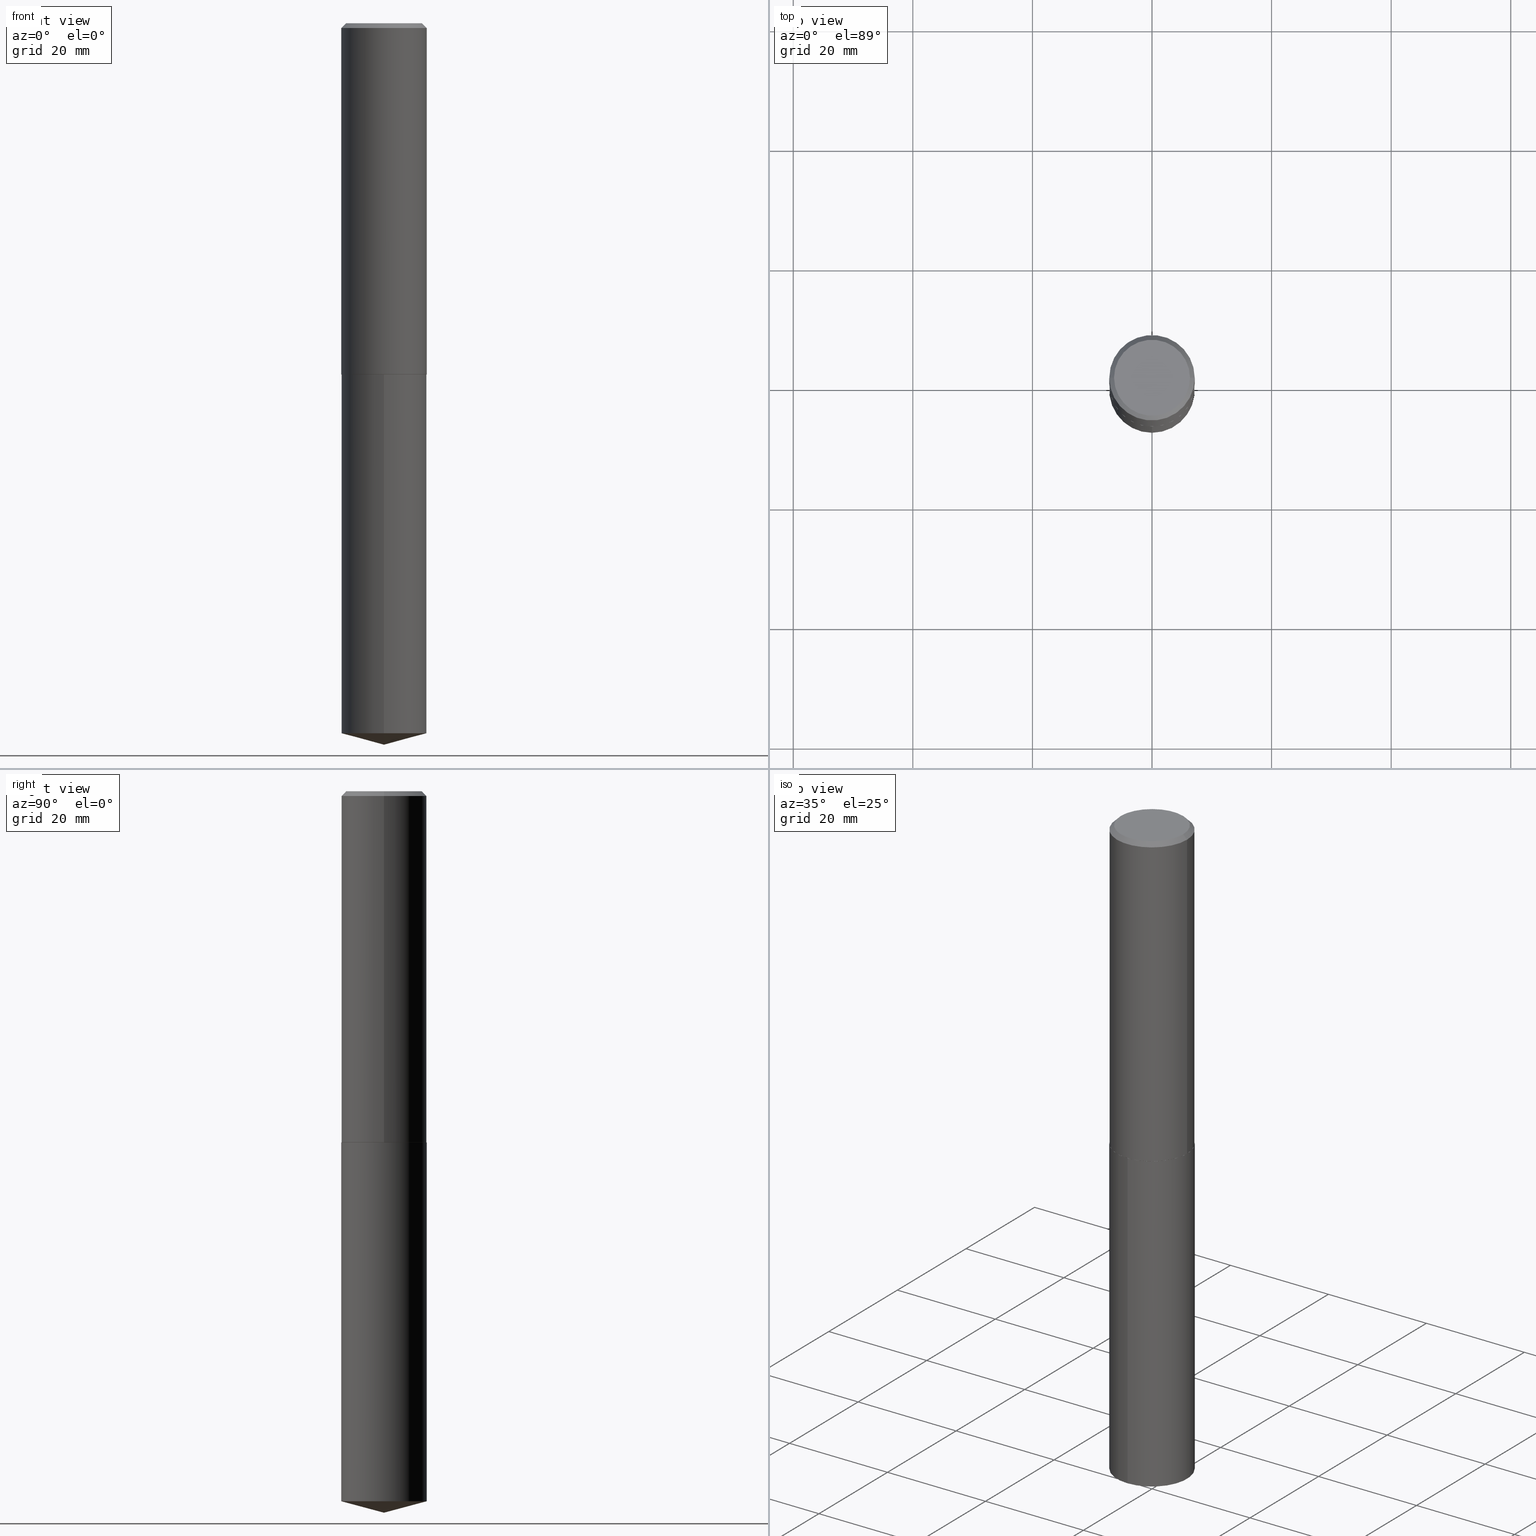
[diagram: canonical four-view strip — front | top / right | iso, engineering-drawing reading convention]
A machine part, canonical four-view strip (front | top / right | iso — engineering-drawing reading convention). The complete STEP part file that produces these views, byte-faithful:
ISO-10303-21;
HEADER;
FILE_DESCRIPTION (( 'STEP AP203' ),
    '1' );
FILE_NAME ('58100.STEP',
    '2024-04-23T02:00:04',
    ( '' ),
    ( '' ),
    'SwSTEP 2.0',
    'SolidWorks 2023',
    '' );
FILE_SCHEMA (( 'CONFIG_CONTROL_DESIGN' ));
ENDSEC;

DATA;
#1 = CALENDAR_DATE ( 2024, 22, 4 ) ;
#2 = FACE_OUTER_BOUND ( 'NONE', #351, .T. ) ;
#3 = DIRECTION ( 'NONE',  ( 1.000000000000000000, 0.000000000000000000, 0.000000000000000000 ) ) ;
#4 = DIRECTION ( 'NONE',  ( -1.000000000000000000, 6.982962677686265922E-15, -4.876176775795935793E-29 ) ) ;
#5 = CONICAL_SURFACE ( 'NONE', #126, 0.2812500000000000000, 0.7853981633974447263 ) ;
#6 = CARTESIAN_POINT ( 'NONE',  ( -0.2812500000000001665, 1.998401444325282956E-15, -1.383450494134192829E-29 ) ) ;
#7 = DATE_TIME_ROLE ( 'creation_date' ) ;
#8 = FACE_OUTER_BOUND ( 'NONE', #82, .T. ) ;
#9 = DIRECTION ( 'NONE',  ( -2.445468806185136597E-29, 3.491481338843145583E-15, 1.000000000000000000 ) ) ;
#10 = APPROVAL_PERSON_ORGANIZATION ( #117, #56, #30 ) ;
#11 = CONICAL_SURFACE ( 'NONE', #228, 0.2812500000000002776, 0.7853981633972775267 ) ;
#12 = DIRECTION ( 'NONE',  ( 1.000000000000000000, -6.982962677686266711E-15, 0.000000000000000000 ) ) ;
#13 = PRODUCT_RELATED_PRODUCT_CATEGORY ( 'detail', '', ( #377 ) ) ;
#14 = DIRECTION ( 'NONE',  ( 1.000000000000000000, -6.982962677686266711E-15, 0.000000000000000000 ) ) ;
#15 = CARTESIAN_POINT ( 'NONE',  ( 1.161598610581294437E-28, -1.658452307512412034E-14, -4.750000000000000000 ) ) ;
#16 = DIRECTION ( 'NONE',  ( 6.863315791527696626E-15, 0.9659258262890698665, 0.2588190451025147998 ) ) ;
#17 = EDGE_CURVE ( 'NONE', #211, #205, #274, .T. ) ;
#18 = ORIENTED_EDGE ( 'NONE', *, *, #103, .T. ) ;
#19 = CARTESIAN_POINT ( 'NONE',  ( -0.2500000000000000000, 1.800295065340990045E-15, 2.871796743988143476E-18 ) ) ;
#20 = VERTEX_POINT ( 'NONE', #237 ) ;
#21 = VERTEX_POINT ( 'NONE', #29 ) ;
#22 = CARTESIAN_POINT ( 'NONE',  ( -1.963958253099205714E-15, -0.2812500000000080491, -2.312499999999999112 ) ) ;
#23 = ORIENTED_EDGE ( 'NONE', *, *, #17, .F. ) ;
#24 = EDGE_CURVE ( 'NONE', #86, #211, #38, .T. ) ;
#25 = ORIENTED_EDGE ( 'NONE', *, *, #24, .T. ) ;
#26 = CC_DESIGN_APPROVAL ( #353, ( #191 ) ) ;
#27 = PERSON_AND_ORGANIZATION ( #303, #365 ) ;
#28 = VECTOR ( 'NONE', #229, 39.37007874015748143 ) ;
#29 = CARTESIAN_POINT ( 'NONE',  ( -1.963958253099147733E-15, -0.2812500000000163203, -4.674639289628746752 ) ) ;
#30 = APPROVAL_ROLE ( '' ) ;
#31 = ORIENTED_EDGE ( 'NONE', *, *, #386, .F. ) ;
#32 = MANIFOLD_SOLID_BREP ( 'Body-Move/Copy2[2]', #203 ) ;
#33 = SHAPE_DEFINITION_REPRESENTATION ( #342, #43 ) ;
#34 = LINE ( 'NONE', #207, #373 ) ;
#35 = PERSON_AND_ORGANIZATION ( #303, #365 ) ;
#36 = ORIENTED_EDGE ( 'NONE', *, *, #89, .T. ) ;
#37 = CC_DESIGN_PERSON_AND_ORGANIZATION_ASSIGNMENT ( #359, #93, ( #191 ) ) ;
#38 = LINE ( 'NONE', #95, #367 ) ;
#39 = DIRECTION ( 'NONE',  ( -2.445543017653500849E-29, 3.491375063796593524E-15, 1.000000000000000000 ) ) ;
#40 = DIRECTION ( 'NONE',  ( -2.445468806185136877E-29, 3.491481338843145188E-15, 1.000000000000000000 ) ) ;
#41 = LOCAL_TIME ( 22, 0, 4.000000000000000000, #180 ) ;
#42 = CARTESIAN_POINT ( 'NONE',  ( 5.655146614303128380E-29, -8.074050596074775072E-15, -2.312500000000000000 ) ) ;
#43 = ADVANCED_BREP_SHAPE_REPRESENTATION ( '58100', ( #158, #32, #215 ), #190 ) ;
#44 = AXIS2_PLACEMENT_3D ( 'NONE', #131, #256, #374 ) ;
#45 = EDGE_CURVE ( 'NONE', #227, #347, #162, .T. ) ;
#46 = ORIENTED_EDGE ( 'NONE', *, *, #134, .F. ) ;
#47 = ORIENTED_EDGE ( 'NONE', *, *, #246, .T. ) ;
#48 = DIRECTION ( 'NONE',  ( 1.000000000000000000, -6.982962677686266711E-15, 0.000000000000000000 ) ) ;
#49 = VERTEX_POINT ( 'NONE', #152 ) ;
#50 = AXIS2_PLACEMENT_3D ( 'NONE', #254, #101, #371 ) ;
#51 = LOCAL_TIME ( 22, 0, 4.000000000000000000, #208 ) ;
#52 = CARTESIAN_POINT ( 'NONE',  ( -7.022889355157371044E-47, 1.002682474062840234E-32, 2.871796744000543383E-18 ) ) ;
#53 = VERTEX_POINT ( 'NONE', #213 ) ;
#54 = APPROVAL_ROLE ( '' ) ;
#55 = ORIENTED_EDGE ( 'NONE', *, *, #192, .T. ) ;
#56 = APPROVAL ( #324, 'UNSPECIFIED' ) ;
#57 = APPROVAL_DATE_TIME ( #119, #56 ) ;
#58 = DIRECTION ( 'NONE',  ( -0.7071067811865450192, 2.468850131082230634E-15, -0.7071067811865500152 ) ) ;
#59 = AXIS2_PLACEMENT_3D ( 'NONE', #258, #348, #81 ) ;
#60 = APPROVAL_DATE_TIME ( #145, #353 ) ;
#61 = AXIS2_PLACEMENT_3D ( 'NONE', #42, #105, #278 ) ;
#62 = PLANE ( 'NONE',  #151 ) ;
#63 = PERSON_AND_ORGANIZATION_ROLE ( 'classification_officer' ) ;
#64 = DIRECTION ( 'NONE',  ( 1.000000000000000000, -6.982962677686266711E-15, 0.000000000000000000 ) ) ;
#65 = DIRECTION ( 'NONE',  ( 0.000000000000000000, 0.000000000000000000, 1.000000000000000000 ) ) ;
#66 = CARTESIAN_POINT ( 'NONE',  ( 5.655146614303128380E-29, -8.074050596074775072E-15, -2.312500000000000000 ) ) ;
#67 = CC_DESIGN_DATE_AND_TIME_ASSIGNMENT ( #354, #7, ( #284 ) ) ;
#68 = DIRECTION ( 'NONE',  ( -2.445468806185136597E-29, 3.491481338843145583E-15, 1.000000000000000000 ) ) ;
#69 = CYLINDRICAL_SURFACE ( 'NONE', #280, 0.2812500000000000000 ) ;
#70 = APPLICATION_CONTEXT ( 'configuration controlled 3d designs of mechanical parts and assemblies' ) ;
#71 = AXIS2_PLACEMENT_3D ( 'NONE', #337, #249, #155 ) ;
#72 = CARTESIAN_POINT ( 'NONE',  ( 1.998401444325338176E-15, 0.2812499999999919509, -2.312500000000000888 ) ) ;
#73 = CARTESIAN_POINT ( 'NONE',  ( 7.642090019328606165E-31, -1.091087918388490760E-16, -0.03125000000000022204 ) ) ;
#74 = AXIS2_PLACEMENT_3D ( 'NONE', #139, #226, #204 ) ;
#75 = ORIENTED_EDGE ( 'NONE', *, *, #330, .F. ) ;
#76 = APPROVAL_PERSON_ORGANIZATION ( #356, #353, #54 ) ;
#77 = CIRCLE ( 'NONE', #61, 0.2807500000000005547 ) ;
#78 = CARTESIAN_POINT ( 'NONE',  ( -8.466506344762712615E-28, 1.208714338590152846E-13, 34.62007874015748143 ) ) ;
#79 = EDGE_LOOP ( 'NONE', ( #166, #234, #379, #84 ) ) ;
#80 = ADVANCED_FACE ( 'NONE', ( #212 ), #62, .F. ) ;
#81 = DIRECTION ( 'NONE',  ( -6.982962677686266711E-15, -1.000000000000000000, 3.885294924322507688E-15 ) ) ;
#82 = EDGE_LOOP ( 'NONE', ( #140, #343, #36, #198 ) ) ;
#83 = DIRECTION ( 'NONE',  ( -2.445468806185136597E-29, 3.491481338843145583E-15, 1.000000000000000000 ) ) ;
#84 = ORIENTED_EDGE ( 'NONE', *, *, #235, .F. ) ;
#85 =( CONVERSION_BASED_UNIT ( 'INCH', #290 ) LENGTH_UNIT ( ) NAMED_UNIT ( #178 ) );
#86 = VERTEX_POINT ( 'NONE', #97 ) ;
#87 = CALENDAR_DATE ( 2024, 22, 4 ) ;
#88 = DIRECTION ( 'NONE',  ( -6.982962677686266711E-15, -1.000000000000000000, 3.885294924322507688E-15 ) ) ;
#89 = EDGE_CURVE ( 'NONE', #21, #347, #34, .T. ) ;
#90 = DATE_TIME_ROLE ( 'classification_date' ) ;
#91 = DIRECTION ( 'NONE',  ( 6.982962677686265922E-15, 1.000000000000000000, -3.491375063796593524E-15 ) ) ;
#92 = VECTOR ( 'NONE', #127, 39.37007874015748143 ) ;
#93 = PERSON_AND_ORGANIZATION_ROLE ( 'design_supplier' ) ;
#94 = AXIS2_PLACEMENT_3D ( 'NONE', #78, #165, #321 ) ;
#95 = CARTESIAN_POINT ( 'NONE',  ( -0.2812500000000002776, -6.073903411080069429E-15, -2.312000000000000277 ) ) ;
#96 = ADVANCED_FACE ( 'NONE', ( #2 ), #361, .F. ) ;
#97 = CARTESIAN_POINT ( 'NONE',  ( -0.2807500000000005547, -6.076552638254179052E-15, -2.312500000000000000 ) ) ;
#98 = APPROVAL_ROLE ( '' ) ;
#99 = CARTESIAN_POINT ( 'NONE',  ( 0.000000000000000000, 0.000000000000000000, 0.000000000000000000 ) ) ;
#100 = LOCAL_TIME ( 22, 0, 4.000000000000000000, #206 ) ;
#101 = DIRECTION ( 'NONE',  ( -2.445468806185136597E-29, 3.491481338843145583E-15, 1.000000000000000000 ) ) ;
#102 = AXIS2_PLACEMENT_3D ( 'NONE', #247, #184, #363 ) ;
#103 = EDGE_CURVE ( 'NONE', #263, #53, #236, .T. ) ;
#104 = CARTESIAN_POINT ( 'NONE',  ( 5.653923879900035579E-29, -8.072304855405352780E-15, -2.312000000000000277 ) ) ;
#105 = DIRECTION ( 'NONE',  ( -2.445468806185136597E-29, 3.491481338843145583E-15, 1.000000000000000000 ) ) ;
#106 = LOCAL_TIME ( 22, 0, 4.000000000000000000, #183 ) ;
#107 = EDGE_CURVE ( 'NONE', #205, #244, #310, .T. ) ;
#108 = ORIENTED_EDGE ( 'NONE', *, *, #288, .T. ) ;
#109 = CARTESIAN_POINT ( 'NONE',  ( 0.2812500000000002776, -1.003626310850461766E-14, -2.312000000000000277 ) ) ;
#110 = CIRCLE ( 'NONE', #328, 0.2812500000000000000 ) ;
#111 = DIRECTION ( 'NONE',  ( 1.000000000000000000, -6.982962677686266711E-15, 0.000000000000000000 ) ) ;
#112 = ORIENTED_EDGE ( 'NONE', *, *, #134, .T. ) ;
#113 = FACE_OUTER_BOUND ( 'NONE', #271, .T. ) ;
#114 = AXIS2_PLACEMENT_3D ( 'NONE', #334, #240, #186 ) ;
#115 = PLANE ( 'NONE',  #179 ) ;
#116 = CC_DESIGN_PERSON_AND_ORGANIZATION_ASSIGNMENT ( #27, #275, ( #377 ) ) ;
#117 = PERSON_AND_ORGANIZATION ( #303, #365 ) ;
#118 = CARTESIAN_POINT ( 'NONE',  ( -3.511444677578685522E-47, 5.013412370314201172E-33, 1.435898372000271691E-18 ) ) ;
#119 = DATE_AND_TIME ( #272, #51 ) ;
#120 = LINE ( 'NONE', #269, #177 ) ;
#121 = CONICAL_SURFACE ( 'NONE', #309, 0.2812500000000002776, 0.7853981633972775267 ) ;
#122 = DIRECTION ( 'NONE',  ( -2.445543017653500849E-29, 3.491375063796593524E-15, 1.000000000000000000 ) ) ;
#123 = APPROVAL_STATUS ( 'not_yet_approved' ) ;
#124 = CYLINDRICAL_SURFACE ( 'NONE', #102, 0.2812500000000000000 ) ;
#125 = ADVANCED_FACE ( 'NONE', ( #8 ), #124, .T. ) ;
#126 = AXIS2_PLACEMENT_3D ( 'NONE', #73, #317, #233 ) ;
#127 = DIRECTION ( 'NONE',  ( -2.445543017653501129E-29, 3.491375063796593524E-15, 1.000000000000000000 ) ) ;
#128 = AXIS2_PLACEMENT_3D ( 'NONE', #308, #39, #282 ) ;
#129 = FACE_OUTER_BOUND ( 'NONE', #169, .T. ) ;
#130 = ADVANCED_FACE ( 'NONE', ( #326 ), #301, .T. ) ;
#131 = CARTESIAN_POINT ( 'NONE',  ( 1.143185986077971109E-28, -1.632116480909878347E-14, -4.674639289628747640 ) ) ;
#132 =( NAMED_UNIT ( * ) SI_UNIT ( $, .STERADIAN. ) SOLID_ANGLE_UNIT ( ) );
#133 = CARTESIAN_POINT ( 'NONE',  ( 0.2812500000000000000, -2.038623853712092353E-15, -0.03125000000000022204 ) ) ;
#134 = EDGE_CURVE ( 'NONE', #263, #205, #120, .T. ) ;
#135 = DIRECTION ( 'NONE',  ( 1.000000000000000000, -6.982962677686266711E-15, 4.876242311950517246E-29 ) ) ;
#136 = VERTEX_POINT ( 'NONE', #327 ) ;
#137 = AXIS2_PLACEMENT_3D ( 'NONE', #260, #83, #48 ) ;
#138 = ORIENTED_EDGE ( 'NONE', *, *, #17, .T. ) ;
#139 = CARTESIAN_POINT ( 'NONE',  ( -8.466506344762712615E-28, 1.208714338590152846E-13, 34.62007874015748143 ) ) ;
#140 = ORIENTED_EDGE ( 'NONE', *, *, #202, .F. ) ;
#141 = APPROVAL ( #123, 'UNSPECIFIED' ) ;
#142 = PERSON_AND_ORGANIZATION_ROLE ( 'creator' ) ;
#143 = ORIENTED_EDGE ( 'NONE', *, *, #188, .F. ) ;
#144 = CONICAL_SURFACE ( 'NONE', #71, 0.2812500000000000000, 0.7853981633974447263 ) ;
#145 = DATE_AND_TIME ( #245, #41 ) ;
#146 = DIRECTION ( 'NONE',  ( -2.445543017653501129E-29, 3.491375063796593524E-15, 1.000000000000000000 ) ) ;
#147 = APPLICATION_PROTOCOL_DEFINITION ( 'international standard', 'config_control_design', 1994, #248 ) ;
#148 = DIRECTION ( 'NONE',  ( 1.000000000000000000, -6.982962677686265922E-15, 4.876176775795935793E-29 ) ) ;
#149 = ADVANCED_FACE ( 'NONE', ( #390 ), #115, .F. ) ;
#150 = EDGE_LOOP ( 'NONE', ( #47, #388, #323, #195 ) ) ;
#151 = AXIS2_PLACEMENT_3D ( 'NONE', #66, #331, #148 ) ;
#152 = CARTESIAN_POINT ( 'NONE',  ( 0.2807500000000005547, -1.003451736783519694E-14, -2.312500000000000000 ) ) ;
#153 = CARTESIAN_POINT ( 'NONE',  ( -0.2812500000000002776, -6.073903411080069429E-15, -2.312000000000000277 ) ) ;
#154 = EDGE_CURVE ( 'NONE', #20, #21, #222, .T. ) ;
#155 = DIRECTION ( 'NONE',  ( -1.000000000000000000, 6.982962677686266711E-15, 0.000000000000000000 ) ) ;
#156 = CIRCLE ( 'NONE', #225, 0.2500000000000000000 ) ;
#157 = ADVANCED_FACE ( 'NONE', ( #307 ), #144, .T. ) ;
#158 = MANIFOLD_SOLID_BREP ( 'Body-Move/Copy2[1]', #389 ) ;
#159 = DIRECTION ( 'NONE',  ( -6.982962677686266711E-15, -1.000000000000000000, 3.885294924322507688E-15 ) ) ;
#160 = LOCAL_TIME ( 22, 0, 4.000000000000000000, #294 ) ;
#161 =( NAMED_UNIT ( * ) PLANE_ANGLE_UNIT ( ) SI_UNIT ( $, .RADIAN. ) );
#162 = CIRCLE ( 'NONE', #322, 0.2812500000000000000 ) ;
#163 = EDGE_CURVE ( 'NONE', #86, #49, #264, .T. ) ;
#164 = VERTEX_POINT ( 'NONE', #189 ) ;
#165 = DIRECTION ( 'NONE',  ( -2.445543017653500849E-29, 3.491375063796593524E-15, 1.000000000000000000 ) ) ;
#166 = ORIENTED_EDGE ( 'NONE', *, *, #24, .F. ) ;
#167 =( LENGTH_UNIT ( ) NAMED_UNIT ( * ) SI_UNIT ( $, .METRE. ) );
#168 = AXIS2_PLACEMENT_3D ( 'NONE', #346, #315, #267 ) ;
#169 = EDGE_LOOP ( 'NONE', ( #232, #25, #174, #349 ) ) ;
#170 = FACE_OUTER_BOUND ( 'NONE', #230, .T. ) ;
#171 = EDGE_LOOP ( 'NONE', ( #23, #355, #318, #199 ) ) ;
#172 = CC_DESIGN_PERSON_AND_ORGANIZATION_ASSIGNMENT ( #173, #142, ( #191 ) ) ;
#173 = PERSON_AND_ORGANIZATION ( #303, #365 ) ;
#174 = ORIENTED_EDGE ( 'NONE', *, *, #302, .F. ) ;
#175 = APPROVAL_STATUS ( 'not_yet_approved' ) ;
#176 = DIRECTION ( 'NONE',  ( 2.445543017653500569E-29, -3.491375063796593524E-15, -1.000000000000000000 ) ) ;
#177 = VECTOR ( 'NONE', #58, 39.37007874015748143 ) ;
#178 = DIMENSIONAL_EXPONENTS ( 1.000000000000000000, 0.000000000000000000, 0.000000000000000000, 0.000000000000000000, 0.000000000000000000, 0.000000000000000000, 0.000000000000000000 ) ;
#179 = AXIS2_PLACEMENT_3D ( 'NONE', #209, #176, #91 ) ;
#180 = COORDINATED_UNIVERSAL_TIME_OFFSET ( 5, 0, .BEHIND. ) ;
#181 = CC_DESIGN_DATE_AND_TIME_ASSIGNMENT ( #362, #90, ( #320 ) ) ;
#182 = ORIENTED_EDGE ( 'NONE', *, *, #45, .T. ) ;
#183 = COORDINATED_UNIVERSAL_TIME_OFFSET ( 5, 0, .BEHIND. ) ;
#184 = DIRECTION ( 'NONE',  ( -2.445543017653500849E-29, 3.491375063796593524E-15, 1.000000000000000000 ) ) ;
#185 = CARTESIAN_POINT ( 'NONE',  ( 0.000000000000000000, 0.000000000000000000, 0.000000000000000000 ) ) ;
#186 = DIRECTION ( 'NONE',  ( 1.000000000000000000, -6.982962677686266711E-15, 4.876242311950517246E-29 ) ) ;
#187 = DIRECTION ( 'NONE',  ( 1.000000000000000000, -6.982962677686265133E-15, 4.876176775795935232E-29 ) ) ;
#188 = EDGE_CURVE ( 'NONE', #49, #86, #77, .T. ) ;
#189 = CARTESIAN_POINT ( 'NONE',  ( 1.998401444325395763E-15, 0.2812499999999836242, -4.674639289628748529 ) ) ;
#190 =( GEOMETRIC_REPRESENTATION_CONTEXT ( 3 ) GLOBAL_UNCERTAINTY_ASSIGNED_CONTEXT ( ( #341 ) ) GLOBAL_UNIT_ASSIGNED_CONTEXT ( ( #85, #161, #132 ) ) REPRESENTATION_CONTEXT ( 'NONE', 'WORKASPACE' ) );
#191 = PRODUCT_DEFINITION_FORMATION_WITH_SPECIFIED_SOURCE ( 'ANY', '', #377, .NOT_KNOWN. ) ;
#192 = EDGE_CURVE ( 'NONE', #347, #227, #297, .T. ) ;
#193 = CARTESIAN_POINT ( 'NONE',  ( -0.2812500000000000000, -2.092305379296817590E-15, -0.03125000000000022204 ) ) ;
#194 = CARTESIAN_POINT ( 'NONE',  ( 5.653923879900035579E-29, -8.072304855405352780E-15, -2.312000000000000277 ) ) ;
#195 = ORIENTED_EDGE ( 'NONE', *, *, #89, .F. ) ;
#196 = VECTOR ( 'NONE', #16, 39.37007874015748143 ) ;
#197 = FACE_OUTER_BOUND ( 'NONE', #224, .T. ) ;
#198 = ORIENTED_EDGE ( 'NONE', *, *, #45, .F. ) ;
#199 = ORIENTED_EDGE ( 'NONE', *, *, #107, .F. ) ;
#200 = CC_DESIGN_APPROVAL ( #141, ( #320 ) ) ;
#201 = ORIENTED_EDGE ( 'NONE', *, *, #288, .F. ) ;
#202 = EDGE_CURVE ( 'NONE', #164, #227, #338, .T. ) ;
#203 = CLOSED_SHELL ( 'NONE', ( #376, #366, #231, #80, #214, #130, #157, #96 ) ) ;
#204 = DIRECTION ( 'NONE',  ( -6.982962677686265922E-15, -1.000000000000000000, 3.510303681827602962E-15 ) ) ;
#205 = VERTEX_POINT ( 'NONE', #193 ) ;
#206 = COORDINATED_UNIVERSAL_TIME_OFFSET ( 5, 0, .BEHIND. ) ;
#207 = CARTESIAN_POINT ( 'NONE',  ( -1.963958253099205714E-15, -0.2812500000000080491, -2.312499999999999112 ) ) ;
#208 = COORDINATED_UNIVERSAL_TIME_OFFSET ( 5, 0, .BEHIND. ) ;
#209 = CARTESIAN_POINT ( 'NONE',  ( 5.655146614303128380E-29, -8.074050596074775072E-15, -2.312500000000000000 ) ) ;
#210 = SECURITY_CLASSIFICATION_LEVEL ( 'unclassified' ) ;
#211 = VERTEX_POINT ( 'NONE', #153 ) ;
#212 = FACE_OUTER_BOUND ( 'NONE', #352, .T. ) ;
#213 = CARTESIAN_POINT ( 'NONE',  ( 0.2500000000000000000, -1.876874176577487622E-15, 2.871796744013210224E-18 ) ) ;
#214 = ADVANCED_FACE ( 'NONE', ( #252 ), #11, .T. ) ;
#215 = AXIS2_PLACEMENT_3D ( 'NONE', #185, #65, #3 ) ;
#216 = AXIS2_PLACEMENT_3D ( 'NONE', #118, #273, #4 ) ;
#217 = CARTESIAN_POINT ( 'NONE',  ( 1.998401444325396158E-15, 0.2812499999999919509, -2.312500000000000888 ) ) ;
#218 = EDGE_CURVE ( 'NONE', #136, #244, #277, .T. ) ;
#219 = DIRECTION ( 'NONE',  ( -6.745023994389843077E-15, -0.9659258262890679791, 0.2588190451025215721 ) ) ;
#220 = VECTOR ( 'NONE', #306, 39.37007874015748143 ) ;
#221 = CARTESIAN_POINT ( 'NONE',  ( 5.655146614303128380E-29, -8.074050596074775072E-15, -2.312500000000000000 ) ) ;
#222 = LINE ( 'NONE', #15, #243 ) ;
#223 = APPLICATION_PROTOCOL_DEFINITION ( 'international standard', 'config_control_design', 1994, #70 ) ;
#224 = EDGE_LOOP ( 'NONE', ( #305, #293, #383 ) ) ;
#225 = AXIS2_PLACEMENT_3D ( 'NONE', #52, #292, #135 ) ;
#226 = DIRECTION ( 'NONE',  ( -2.445543017653500849E-29, 3.491375063796593524E-15, 1.000000000000000000 ) ) ;
#227 = VERTEX_POINT ( 'NONE', #217 ) ;
#228 = AXIS2_PLACEMENT_3D ( 'NONE', #104, #9, #14 ) ;
#229 = DIRECTION ( 'NONE',  ( 0.7071067811864267805, -2.468850131080992517E-15, 0.7071067811866682540 ) ) ;
#230 = EDGE_LOOP ( 'NONE', ( #291, #319, #31 ) ) ;
#231 = ADVANCED_FACE ( 'NONE', ( #129 ), #121, .T. ) ;
#232 = ORIENTED_EDGE ( 'NONE', *, *, #188, .T. ) ;
#233 = DIRECTION ( 'NONE',  ( -1.000000000000000000, 6.982962677686266711E-15, 0.000000000000000000 ) ) ;
#234 = ORIENTED_EDGE ( 'NONE', *, *, #163, .T. ) ;
#235 = EDGE_CURVE ( 'NONE', #211, #136, #289, .T. ) ;
#236 = CIRCLE ( 'NONE', #114, 0.2500000000000000000 ) ;
#237 = CARTESIAN_POINT ( 'NONE',  ( 1.161632933385412903E-28, -1.658403155303381894E-14, -4.750000000000000000 ) ) ;
#238 = ADVANCED_FACE ( 'NONE', ( #335 ), #69, .T. ) ;
#239 = MECHANICAL_CONTEXT ( 'NONE', #70, 'mechanical' ) ;
#240 = DIRECTION ( 'NONE',  ( -2.445468806185136597E-29, 3.491481338843145583E-15, 1.000000000000000000 ) ) ;
#241 = PERSON_AND_ORGANIZATION ( #303, #365 ) ;
#242 = CARTESIAN_POINT ( 'NONE',  ( 5.655146614303128380E-29, -8.074050596074775072E-15, -2.312500000000000000 ) ) ;
#243 = VECTOR ( 'NONE', #219, 39.37007874015748143 ) ;
#244 = VERTEX_POINT ( 'NONE', #283 ) ;
#245 = CALENDAR_DATE ( 2024, 22, 4 ) ;
#246 = EDGE_CURVE ( 'NONE', #21, #164, #314, .T. ) ;
#247 = CARTESIAN_POINT ( 'NONE',  ( 5.655146614303128380E-29, -8.074050596074775072E-15, -2.312500000000000000 ) ) ;
#248 = APPLICATION_CONTEXT ( 'configuration controlled 3d designs of mechanical parts and assemblies' ) ;
#249 = DIRECTION ( 'NONE',  ( 2.445468806185136597E-29, -3.491481338843145583E-15, -1.000000000000000000 ) ) ;
#250 = CONICAL_SURFACE ( 'NONE', #74, 146.9311341562565758, 1.308996938995749870 ) ;
#251 = AXIS2_PLACEMENT_3D ( 'NONE', #99, #357, #187 ) ;
#252 = FACE_OUTER_BOUND ( 'NONE', #79, .T. ) ;
#253 = ADVANCED_FACE ( 'NONE', ( #170 ), #345, .T. ) ;
#254 = CARTESIAN_POINT ( 'NONE',  ( 5.655146614303128380E-29, -8.074050596074775072E-15, -2.312500000000000000 ) ) ;
#255 = DIRECTION ( 'NONE',  ( 1.000000000000000000, -6.982962677686266711E-15, 0.000000000000000000 ) ) ;
#256 = DIRECTION ( 'NONE',  ( -2.445543017653500849E-29, 3.491375063796593524E-15, 1.000000000000000000 ) ) ;
#257 = DESIGN_CONTEXT ( 'detailed design', #248, 'design' ) ;
#258 = CARTESIAN_POINT ( 'NONE',  ( 1.143185986077971109E-28, -1.632116480909878347E-14, -4.674639289628747640 ) ) ;
#259 = EDGE_CURVE ( 'NONE', #244, #205, #110, .T. ) ;
#260 = CARTESIAN_POINT ( 'NONE',  ( 5.653923879900035579E-29, -8.072304855405352780E-15, -2.312000000000000277 ) ) ;
#261 = ORIENTED_EDGE ( 'NONE', *, *, #259, .T. ) ;
#262 = LINE ( 'NONE', #133, #381 ) ;
#263 = VERTEX_POINT ( 'NONE', #19 ) ;
#264 = CIRCLE ( 'NONE', #50, 0.2807500000000005547 ) ;
#265 = LINE ( 'NONE', #285, #196 ) ;
#266 = EDGE_LOOP ( 'NONE', ( #333, #138, #316, #296 ) ) ;
#267 = DIRECTION ( 'NONE',  ( 1.000000000000000000, -6.982962677686265133E-15, 4.876176775795935232E-29 ) ) ;
#268 = ORIENTED_EDGE ( 'NONE', *, *, #103, .F. ) ;
#269 = CARTESIAN_POINT ( 'NONE',  ( -0.2812500000000000000, 1.854849461260413412E-15, -0.03125000000000022204 ) ) ;
#270 = PERSON_AND_ORGANIZATION ( #303, #365 ) ;
#271 = EDGE_LOOP ( 'NONE', ( #201, #325, #261, #46 ) ) ;
#272 = CALENDAR_DATE ( 2024, 22, 4 ) ;
#273 = DIRECTION ( 'NONE',  ( 2.438088387897960049E-29, -3.491481338843145188E-15, -1.000000000000000000 ) ) ;
#274 = LINE ( 'NONE', #6, #220 ) ;
#275 = PERSON_AND_ORGANIZATION_ROLE ( 'design_owner' ) ;
#276 = CARTESIAN_POINT ( 'NONE',  ( 7.642090019328606165E-31, -1.091087918388490760E-16, -0.03125000000000022204 ) ) ;
#277 = LINE ( 'NONE', #364, #344 ) ;
#278 = DIRECTION ( 'NONE',  ( 1.000000000000000000, -6.982962677686264344E-15, 0.000000000000000000 ) ) ;
#279 = CC_DESIGN_APPROVAL ( #56, ( #284 ) ) ;
#280 = AXIS2_PLACEMENT_3D ( 'NONE', #221, #312, #159 ) ;
#281 = DIRECTION ( 'NONE',  ( -2.445468806185136597E-29, 3.491481338843145583E-15, 1.000000000000000000 ) ) ;
#282 = DIRECTION ( 'NONE',  ( -6.982962677686266711E-15, -1.000000000000000000, 3.885294924322507688E-15 ) ) ;
#283 = CARTESIAN_POINT ( 'NONE',  ( 0.2812500000000000000, -2.073067044938111613E-15, -0.03125000000000022204 ) ) ;
#284 = PRODUCT_DEFINITION ( 'UNKNOWN', '', #191, #257 ) ;
#285 = CARTESIAN_POINT ( 'NONE',  ( 1.161633234355890358E-28, -1.658403155303381579E-14, -4.750000000000000000 ) ) ;
#286 = EDGE_LOOP ( 'NONE', ( #75, #268, #112, #375 ) ) ;
#287 = DIRECTION ( 'NONE',  ( -2.445468806185136597E-29, 3.491481338843145583E-15, 1.000000000000000000 ) ) ;
#288 = EDGE_CURVE ( 'NONE', #53, #263, #156, .T. ) ;
#289 = CIRCLE ( 'NONE', #380, 0.2812500000000002776 ) ;
#290 = LENGTH_MEASURE_WITH_UNIT ( LENGTH_MEASURE( 0.02539999999999999897 ), #167 );
#291 = ORIENTED_EDGE ( 'NONE', *, *, #299, .F. ) ;
#292 = DIRECTION ( 'NONE',  ( -2.445468806185136597E-29, 3.491481338843145583E-15, 1.000000000000000000 ) ) ;
#293 = ORIENTED_EDGE ( 'NONE', *, *, #299, .T. ) ;
#294 = COORDINATED_UNIVERSAL_TIME_OFFSET ( 5, 0, .BEHIND. ) ;
#295 = CIRCLE ( 'NONE', #59, 0.2812500000000000000 ) ;
#296 = ORIENTED_EDGE ( 'NONE', *, *, #218, .F. ) ;
#297 = CIRCLE ( 'NONE', #128, 0.2812500000000000000 ) ;
#298 = DIRECTION ( 'NONE',  ( -0.7071067811864267805, 7.493145998869918709E-15, 0.7071067811866682540 ) ) ;
#299 = EDGE_CURVE ( 'NONE', #20, #164, #265, .T. ) ;
#300 = DATE_AND_TIME ( #1, #160 ) ;
#301 = CYLINDRICAL_SURFACE ( 'NONE', #251, 0.2812500000000001665 ) ;
#302 = EDGE_CURVE ( 'NONE', #136, #211, #339, .T. ) ;
#303 = PERSON ( 'UNSPECIFIED', 'UNSPECIFIED', 'UNSPECIFIED', ('UNSPECIFIED'), ('UNSPECIFIED'), ('UNSPECIFIED') ) ;
#304 = PERSON_AND_ORGANIZATION_ROLE ( 'creator' ) ;
#305 = ORIENTED_EDGE ( 'NONE', *, *, #154, .F. ) ;
#306 = DIRECTION ( 'NONE',  ( -2.445468806185136877E-29, 3.491481338843145188E-15, 1.000000000000000000 ) ) ;
#307 = FACE_OUTER_BOUND ( 'NONE', #286, .T. ) ;
#308 = CARTESIAN_POINT ( 'NONE',  ( 5.655146614303128380E-29, -8.074050596074775072E-15, -2.312500000000000000 ) ) ;
#309 = AXIS2_PLACEMENT_3D ( 'NONE', #369, #281, #12 ) ;
#310 = CIRCLE ( 'NONE', #368, 0.2812500000000000000 ) ;
#311 = DIRECTION ( 'NONE',  ( -2.445468806185136597E-29, 3.491481338843145583E-15, 1.000000000000000000 ) ) ;
#312 = DIRECTION ( 'NONE',  ( -2.445543017653500849E-29, 3.491375063796593524E-15, 1.000000000000000000 ) ) ;
#313 = CC_DESIGN_PERSON_AND_ORGANIZATION_ASSIGNMENT ( #241, #304, ( #284 ) ) ;
#314 = CIRCLE ( 'NONE', #44, 0.2812500000000000000 ) ;
#315 = DIRECTION ( 'NONE',  ( -2.445468806185136597E-29, 3.491481338843145583E-15, 1.000000000000000000 ) ) ;
#316 = ORIENTED_EDGE ( 'NONE', *, *, #259, .F. ) ;
#317 = DIRECTION ( 'NONE',  ( 2.445468806185136597E-29, -3.491481338843145583E-15, -1.000000000000000000 ) ) ;
#318 = ORIENTED_EDGE ( 'NONE', *, *, #218, .T. ) ;
#319 = ORIENTED_EDGE ( 'NONE', *, *, #154, .T. ) ;
#320 = SECURITY_CLASSIFICATION ( '', '', #210 ) ;
#321 = DIRECTION ( 'NONE',  ( -6.982962677686265922E-15, -1.000000000000000000, 3.510303681827602962E-15 ) ) ;
#322 = AXIS2_PLACEMENT_3D ( 'NONE', #242, #122, #88 ) ;
#323 = ORIENTED_EDGE ( 'NONE', *, *, #192, .F. ) ;
#324 = APPROVAL_STATUS ( 'not_yet_approved' ) ;
#325 = ORIENTED_EDGE ( 'NONE', *, *, #330, .T. ) ;
#326 = FACE_OUTER_BOUND ( 'NONE', #171, .T. ) ;
#327 = CARTESIAN_POINT ( 'NONE',  ( 0.2812500000000002776, -1.003626310850461766E-14, -2.312000000000000277 ) ) ;
#328 = AXIS2_PLACEMENT_3D ( 'NONE', #387, #287, #111 ) ;
#329 = CALENDAR_DATE ( 2024, 22, 4 ) ;
#330 = EDGE_CURVE ( 'NONE', #53, #244, #262, .T. ) ;
#331 = DIRECTION ( 'NONE',  ( -2.438088387897960049E-29, 3.491481338843145188E-15, 1.000000000000000000 ) ) ;
#332 = APPROVAL_DATE_TIME ( #300, #141 ) ;
#333 = ORIENTED_EDGE ( 'NONE', *, *, #302, .T. ) ;
#334 = CARTESIAN_POINT ( 'NONE',  ( -7.022889355157371044E-47, 1.002682474062840234E-32, 2.871796744000543383E-18 ) ) ;
#335 = FACE_OUTER_BOUND ( 'NONE', #150, .T. ) ;
#336 = ADVANCED_FACE ( 'NONE', ( #197 ), #250, .T. ) ;
#337 = CARTESIAN_POINT ( 'NONE',  ( 7.642090019328606165E-31, -1.091087918388490760E-16, -0.03125000000000022204 ) ) ;
#338 = LINE ( 'NONE', #72, #92 ) ;
#339 = CIRCLE ( 'NONE', #137, 0.2812500000000002776 ) ;
#340 = APPROVAL_PERSON_ORGANIZATION ( #270, #141, #98 ) ;
#341 = UNCERTAINTY_MEASURE_WITH_UNIT (LENGTH_MEASURE( 1.000000000000000082E-05 ), #85, 'distance_accuracy_value', 'NONE');
#342 = PRODUCT_DEFINITION_SHAPE ( 'NONE', 'NONE',  #284 ) ;
#343 = ORIENTED_EDGE ( 'NONE', *, *, #386, .T. ) ;
#344 = VECTOR ( 'NONE', #40, 39.37007874015748143 ) ;
#345 = CONICAL_SURFACE ( 'NONE', #94, 146.9311341562565758, 1.308996938995749870 ) ;
#346 = CARTESIAN_POINT ( 'NONE',  ( 0.000000000000000000, 0.000000000000000000, 0.000000000000000000 ) ) ;
#347 = VERTEX_POINT ( 'NONE', #22 ) ;
#348 = DIRECTION ( 'NONE',  ( -2.445543017653500849E-29, 3.491375063796593524E-15, 1.000000000000000000 ) ) ;
#349 = ORIENTED_EDGE ( 'NONE', *, *, #370, .F. ) ;
#350 = FACE_OUTER_BOUND ( 'NONE', #266, .T. ) ;
#351 = EDGE_LOOP ( 'NONE', ( #18, #108 ) ) ;
#352 = EDGE_LOOP ( 'NONE', ( #143, #360 ) ) ;
#353 = APPROVAL ( #175, 'UNSPECIFIED' ) ;
#354 = DATE_AND_TIME ( #329, #100 ) ;
#355 = ORIENTED_EDGE ( 'NONE', *, *, #235, .T. ) ;
#356 = PERSON_AND_ORGANIZATION ( #303, #365 ) ;
#357 = DIRECTION ( 'NONE',  ( -2.445468806185136597E-29, 3.491481338843145583E-15, 1.000000000000000000 ) ) ;
#358 = CC_DESIGN_PERSON_AND_ORGANIZATION_ASSIGNMENT ( #35, #63, ( #320 ) ) ;
#359 = PERSON_AND_ORGANIZATION ( #303, #365 ) ;
#360 = ORIENTED_EDGE ( 'NONE', *, *, #163, .F. ) ;
#361 = PLANE ( 'NONE',  #216 ) ;
#362 = DATE_AND_TIME ( #87, #106 ) ;
#363 = DIRECTION ( 'NONE',  ( -6.982962677686266711E-15, -1.000000000000000000, 3.885294924322507688E-15 ) ) ;
#364 = CARTESIAN_POINT ( 'NONE',  ( 0.2812500000000001665, -1.963958253099263301E-15, 1.371424718192607572E-29 ) ) ;
#365 = ORGANIZATION ( 'UNSPECIFIED', 'UNSPECIFIED', '' ) ;
#366 = ADVANCED_FACE ( 'NONE', ( #350 ), #378, .T. ) ;
#367 = VECTOR ( 'NONE', #298, 39.37007874015748143 ) ;
#368 = AXIS2_PLACEMENT_3D ( 'NONE', #276, #68, #64 ) ;
#369 = CARTESIAN_POINT ( 'NONE',  ( 5.653923879900035579E-29, -8.072304855405352780E-15, -2.312000000000000277 ) ) ;
#370 = EDGE_CURVE ( 'NONE', #49, #136, #382, .T. ) ;
#371 = DIRECTION ( 'NONE',  ( 1.000000000000000000, -6.982962677686264344E-15, 0.000000000000000000 ) ) ;
#372 = CC_DESIGN_SECURITY_CLASSIFICATION ( #320, ( #191 ) ) ;
#373 = VECTOR ( 'NONE', #146, 39.37007874015748143 ) ;
#374 = DIRECTION ( 'NONE',  ( -6.982962677686266711E-15, -1.000000000000000000, 3.885294924322507688E-15 ) ) ;
#375 = ORIENTED_EDGE ( 'NONE', *, *, #107, .T. ) ;
#376 = ADVANCED_FACE ( 'NONE', ( #113 ), #5, .T. ) ;
#377 = PRODUCT ( '58100', '58100', '', ( #239 ) ) ;
#378 = CYLINDRICAL_SURFACE ( 'NONE', #168, 0.2812500000000001665 ) ;
#379 = ORIENTED_EDGE ( 'NONE', *, *, #370, .T. ) ;
#380 = AXIS2_PLACEMENT_3D ( 'NONE', #194, #311, #255 ) ;
#381 = VECTOR ( 'NONE', #384, 39.37007874015748143 ) ;
#382 = LINE ( 'NONE', #109, #28 ) ;
#383 = ORIENTED_EDGE ( 'NONE', *, *, #246, .F. ) ;
#384 = DIRECTION ( 'NONE',  ( 0.7071067811865450192, -7.319954787623246579E-15, -0.7071067811865500152 ) ) ;
#385 = EDGE_LOOP ( 'NONE', ( #55, #182 ) ) ;
#386 = EDGE_CURVE ( 'NONE', #164, #21, #295, .T. ) ;
#387 = CARTESIAN_POINT ( 'NONE',  ( 7.642090019328606165E-31, -1.091087918388490760E-16, -0.03125000000000022204 ) ) ;
#388 = ORIENTED_EDGE ( 'NONE', *, *, #202, .T. ) ;
#389 = CLOSED_SHELL ( 'NONE', ( #238, #336, #253, #125, #149 ) ) ;
#390 = FACE_OUTER_BOUND ( 'NONE', #385, .T. ) ;
ENDSEC;
END-ISO-10303-21;
